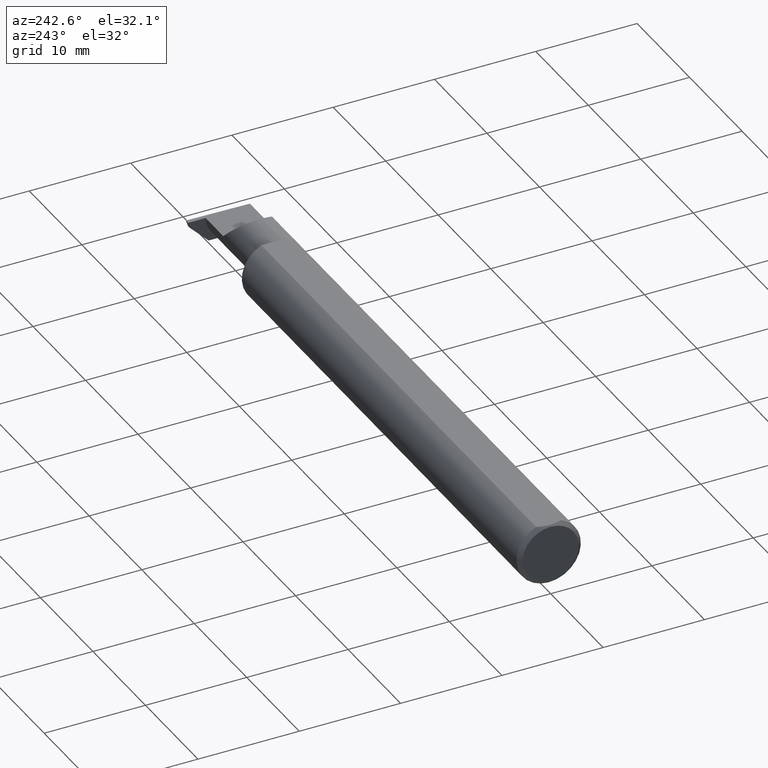
[diagram: clean part render]
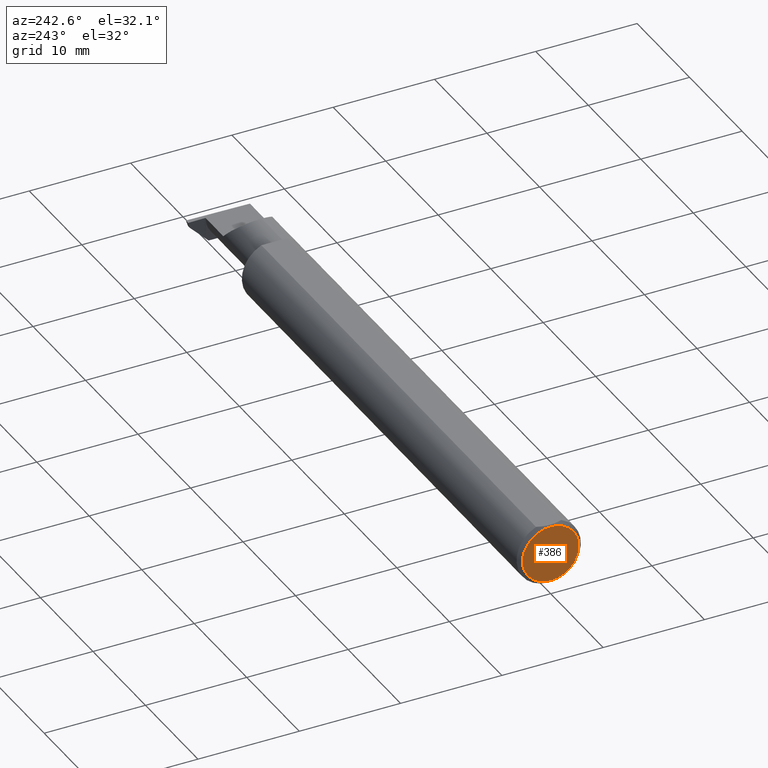
[diagram: same view with one face highlighted and labeled with its STEP entity id]
A machine part, auxiliary view. The second image highlights one B-rep face of the part: STEP entity #386.
In plain terms, the highlighted planar face has unit normal (1, 0, 0).
Its self-contained STEP definition (entity closure, byte-faithful):
#5 = DIRECTION ( 'NONE',  ( 0.000000000000000000, 0.000000000000000000, 1.000000000000000000 ) ) ;
#9 = ORIENTED_EDGE ( 'NONE', *, *, #392, .T. ) ;
#63 = DIRECTION ( 'NONE',  ( -1.000000000000000000, -0.000000000000000000, -0.000000000000000000 ) ) ;
#72 = DIRECTION ( 'NONE',  ( 1.000000000000000000, 0.000000000000000000, 0.000000000000000000 ) ) ;
#107 = VERTEX_POINT ( 'NONE', #690 ) ;
#126 = DIRECTION ( 'NONE',  ( -1.000000000000000000, -0.000000000000000000, -0.000000000000000000 ) ) ;
#170 = CIRCLE ( 'NONE', #183, 0.1098500000000000032 ) ;
#177 = CARTESIAN_POINT ( 'NONE',  ( 0.000000000000000000, 0.000000000000000000, -0.1098500000000000032 ) ) ;
#183 = AXIS2_PLACEMENT_3D ( 'NONE', #252, #126, #784 ) ;
#188 = CARTESIAN_POINT ( 'NONE',  ( 0.000000000000000000, 0.000000000000000000, 0.000000000000000000 ) ) ;
#252 = CARTESIAN_POINT ( 'NONE',  ( 0.000000000000000000, 0.000000000000000000, 0.000000000000000000 ) ) ;
#305 = PLANE ( 'NONE',  #417 ) ;
#320 = VERTEX_POINT ( 'NONE', #177 ) ;
#366 = FACE_OUTER_BOUND ( 'NONE', #659, .T. ) ;
#386 = ADVANCED_FACE ( 'NONE', ( #366 ), #305, .F. ) ;
#392 = EDGE_CURVE ( 'NONE', #320, #107, #170, .T. ) ;
#393 = EDGE_CURVE ( 'NONE', #107, #320, #759, .T. ) ;
#417 = AXIS2_PLACEMENT_3D ( 'NONE', #727, #72, #675 ) ;
#596 = ORIENTED_EDGE ( 'NONE', *, *, #393, .T. ) ;
#608 = AXIS2_PLACEMENT_3D ( 'NONE', #188, #63, #5 ) ;
#659 = EDGE_LOOP ( 'NONE', ( #9, #596 ) ) ;
#675 = DIRECTION ( 'NONE',  ( 0.000000000000000000, 0.000000000000000000, -1.000000000000000000 ) ) ;
#690 = CARTESIAN_POINT ( 'NONE',  ( 0.000000000000000000, 1.437123018799419134E-17, 0.1098500000000000032 ) ) ;
#727 = CARTESIAN_POINT ( 'NONE',  ( 0.000000000000000000, 0.000000000000000000, 0.000000000000000000 ) ) ;
#759 = CIRCLE ( 'NONE', #608, 0.1098500000000000032 ) ;
#784 = DIRECTION ( 'NONE',  ( 0.000000000000000000, 0.000000000000000000, 1.000000000000000000 ) ) ;